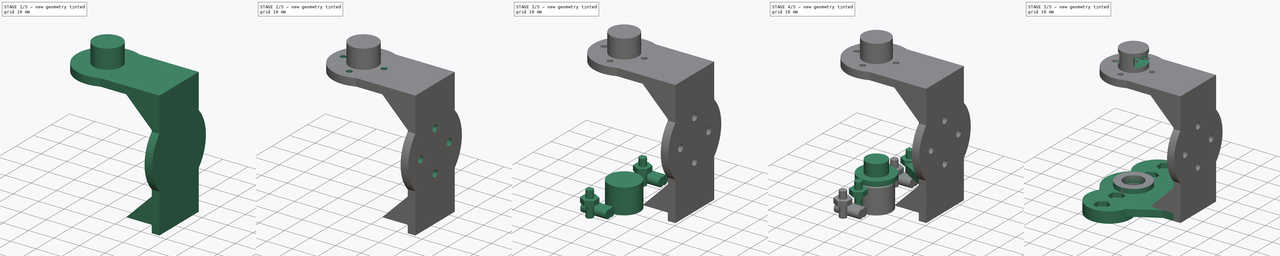
[diagram: build sequence overview — one tinted view per stage of 5, left to right]
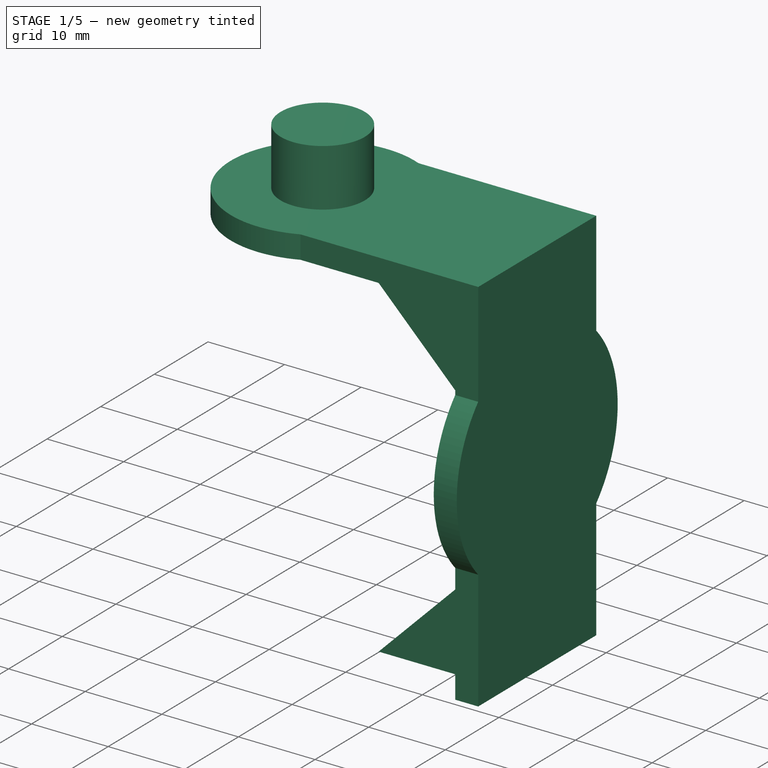
[diagram: stage 1 of 5 — iso view after this stage's code; geometry added in this stage tinted green]
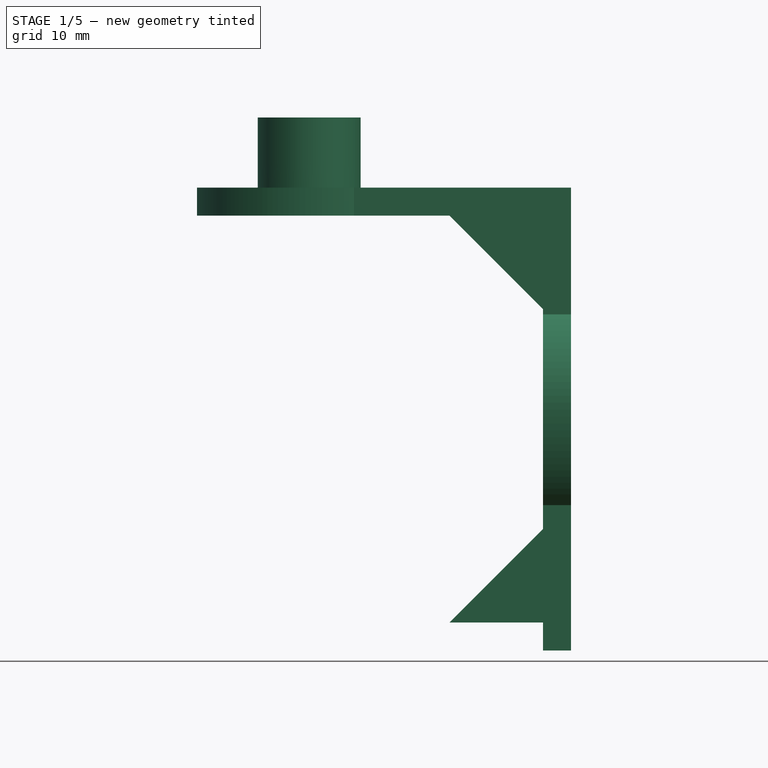
[diagram: stage 1 of 5 — front view after this stage's code; geometry added in this stage tinted green]
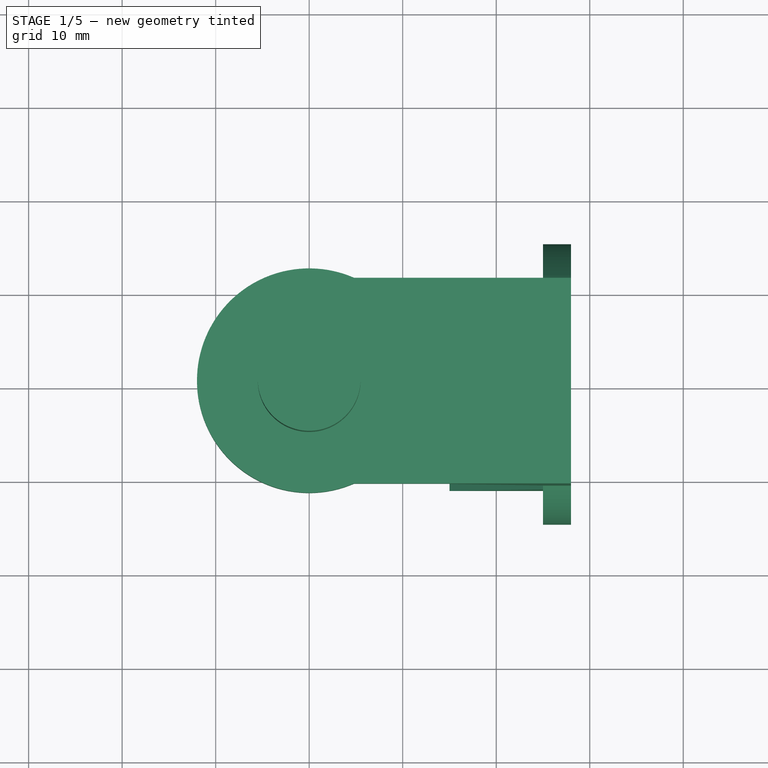
[diagram: stage 1 of 5 — top view after this stage's code; geometry added in this stage tinted green]
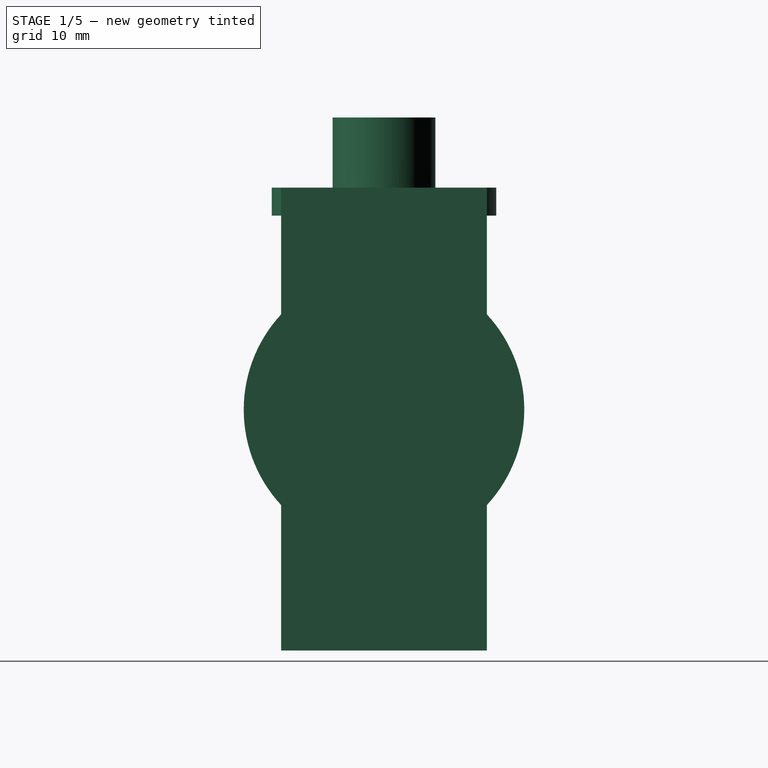
[diagram: stage 1 of 5 — right view after this stage's code; geometry added in this stage tinted green]
FCSTD DOCUMENT  (FreeCAD 0.16R6706 (Git))
Label: wrist_frame
License: All rights reserved
LicenseURL: http://en.wikipedia.org/wiki/All_rights_reserved
objects: Part::Cylinder×28, Part::MultiFuse×25, Part::Mirroring×7, Part::Extrusion×6, Part::Box×5, Part::Fillet×4, Part::Cut×3, Sketcher::SketchObject×2
note: 80 computed .brp shape members not serialized (recipe doc carries the construction recipe); baked Part::Feature solids carry a one-line shape summary decoded from their .brp

FEATURE [Part::Box] Box001  label="Cube001"
  Height = 49.5
  Length = 3
  Placement = pos=(25,-11,-2) rot=(0,0,1;0rad)
  Width = 22
FEATURE [Part::Box] Box002  label="Cube002"
  Height = 3
  Length = 25
  Placement = pos=(0,-11,0) rot=(0,0,1;0rad)
  Width = 22
FEATURE [Part::Cylinder] Cylinder001
  Angle = 360
  Height = 3
  Radius = 12
FEATURE [Part::MultiFuse] Fusion001
  Placement = pos=(0,0,44.5) rot=(0,0,1;0rad)
  Shapes = -> [Box002,Cylinder001]
FEATURE [Part::Cylinder] Cylinder015
  Angle = 360
  Height = 3
  Placement = pos=(25,0,23.75) rot=(0,1,0;1.5708rad)
  Radius = 15
FEATURE [Part::Cylinder] Cylinder016
  Angle = 360
  Height = 6
  Placement = pos=(0,0,44.5) rot=(0,0,1;0rad)
  Radius = 5.5
FEATURE [Part::MultiFuse] Fusion019
  Shapes = -> [Cylinder016,Fusion001]
FEATURE [Part::MultiFuse] Fusion020
  Shapes = -> [Cylinder015,Box001]
FEATURE [Part::MultiFuse] Fusion028
  Shapes = -> [Fusion019,Fusion020]
FEATURE [Sketcher::SketchObject] Sketch
  Placement = pos=(0,-30,0) rot=(1,0,0;1.5708rad)
  sketch-geometry (3):
    g0: LineSegment StartX=15 StartY=1 StartZ=0 EndX=25 EndY=11 EndZ=0
    g1: LineSegment StartX=15 StartY=1 StartZ=0 EndX=25 EndY=1 EndZ=0
    g2: LineSegment StartX=25 StartY=1 StartZ=0 EndX=25 EndY=11 EndZ=0
  constraints (9):
    c: DistanceX(g0) = 25
    c: DistanceY(g0) = 11
    c: DistanceY(g0) = 1
    c: DistanceX(g0) = 15
    c: Coincident(g1,g0)
    c: Horizontal(g1)
    c: DistanceX(g1) = 25
    c: Coincident(g2,g1)
    c: Coincident(g2,g0)
FEATURE [Part::Extrusion] Extrude004
  Base = -> Sketch
  Dir = (0,3,0)
  Placement = pos=(0,19,0) rot=(0,0,1;0rad)
  Solid = true
FEATURE [Part::Mirroring] Part__Mirroring005  label="Extrude004 (Mirror #6)"
  Base = (0,0,0)
  Normal = (0,1,0)
  Source = -> Extrude004
FEATURE [Part::MultiFuse] Fusion030
  Shapes = -> [Extrude004,Part__Mirroring005]
FEATURE [Sketcher::SketchObject] Sketch001
  Placement = pos=(0,-30,0) rot=(1,0,0;1.5708rad)
  sketch-geometry (3):
    g0: LineSegment StartX=15 StartY=1 StartZ=0 EndX=25 EndY=11 EndZ=0
    g1: LineSegment StartX=15 StartY=1 StartZ=0 EndX=25 EndY=1 EndZ=0
    g2: LineSegment StartX=25 StartY=1 StartZ=0 EndX=25 EndY=11 EndZ=0
  constraints (9):
    c: DistanceX(g0) = 25
    c: DistanceY(g0) = 11
    c: DistanceY(g0) = 1
    c: DistanceX(g0) = 15
    c: Coincident(g1,g0)
    c: Horizontal(g1)
    c: DistanceX(g1) = 25
    c: Coincident(g2,g1)
    c: Coincident(g2,g0)
FEATURE [Part::Extrusion] Extrude005
  Base = -> Sketch001
  Dir = (0,3,0)
  Placement = pos=(0,19,0) rot=(0,0,1;0rad)
  Solid = true
FEATURE [Part::Mirroring] Part__Mirroring006  label="Extrude004 (Mirror #6)001"
  Base = (0,0,0)
  Normal = (0,1,0)
  Source = -> Extrude005
FEATURE [Part::MultiFuse] Fusion031
  Placement = pos=(0,0,45.5) rot=(1,0,0;3.14159rad)
  Shapes = -> [Extrude005,Part__Mirroring006]
FEATURE [Part::Cylinder] Cylinder027  label="Cilindro"
  Angle = 360
  Height = 5
  Placement = pos=(0,0,50) rot=(0,0,1;0rad)
  Radius = 5.5
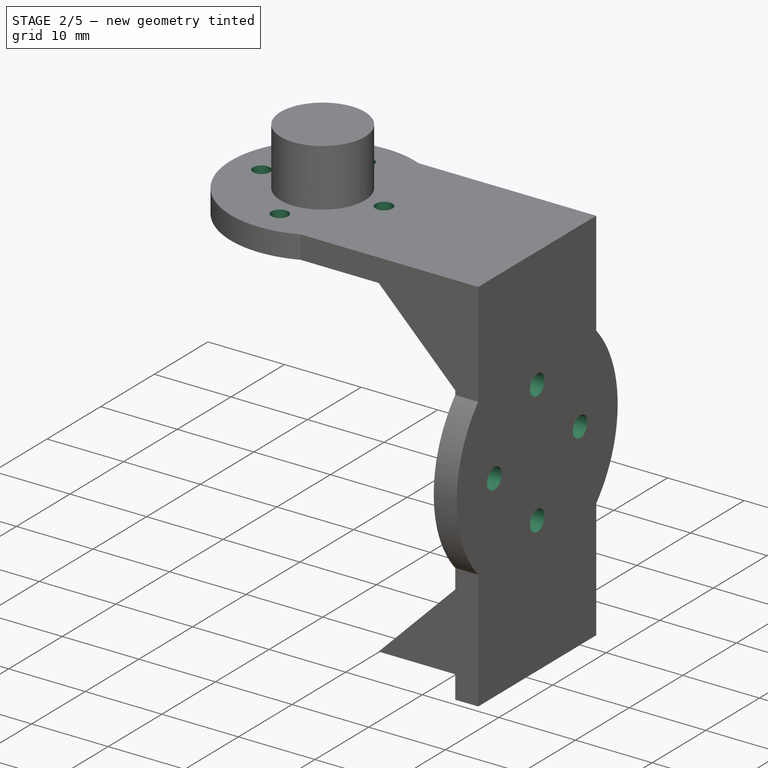
[diagram: stage 2 of 5 — iso view after this stage's code; geometry added in this stage tinted green]
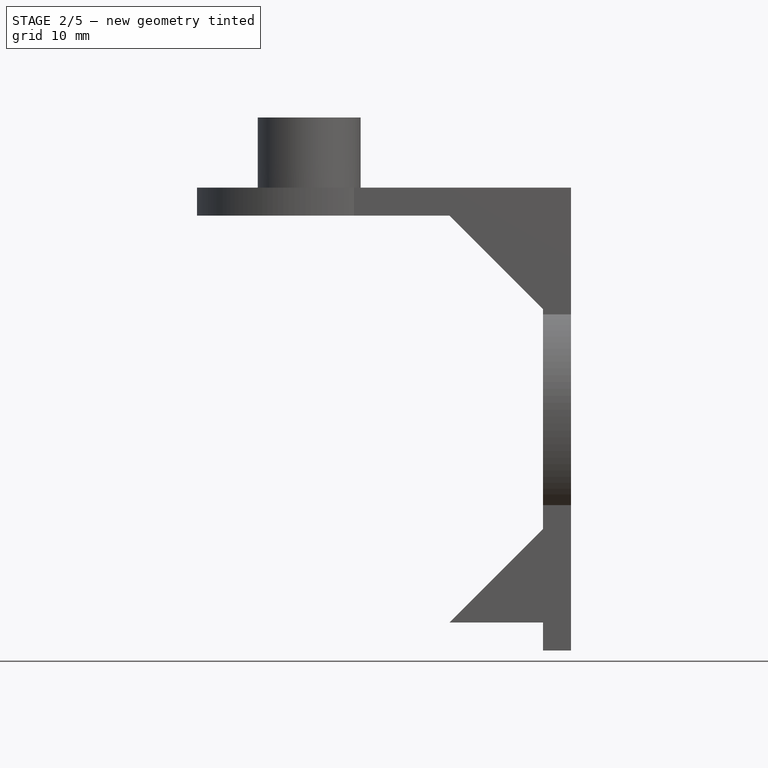
[diagram: stage 2 of 5 — front view after this stage's code; geometry added in this stage tinted green]
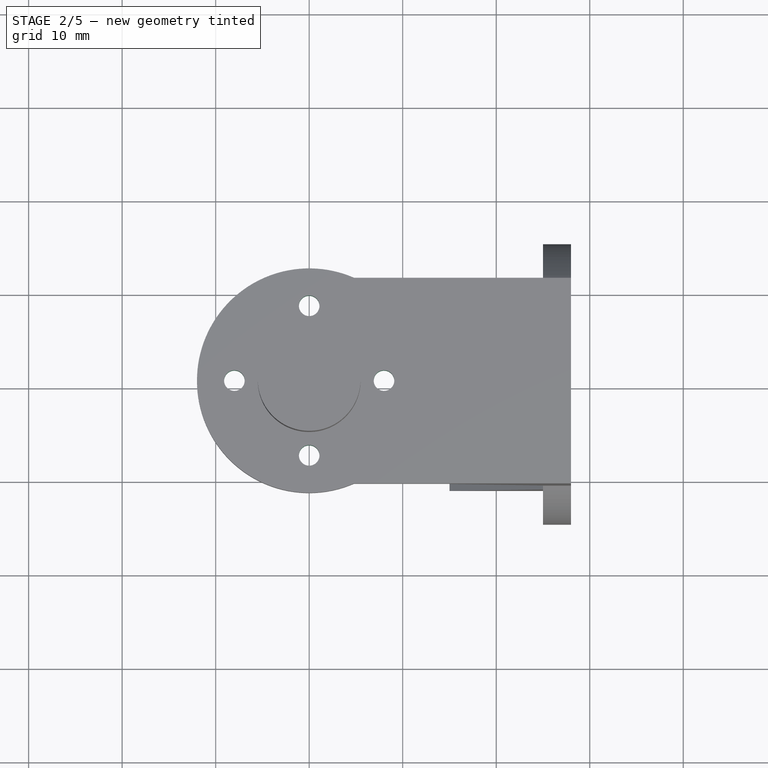
[diagram: stage 2 of 5 — top view after this stage's code; geometry added in this stage tinted green]
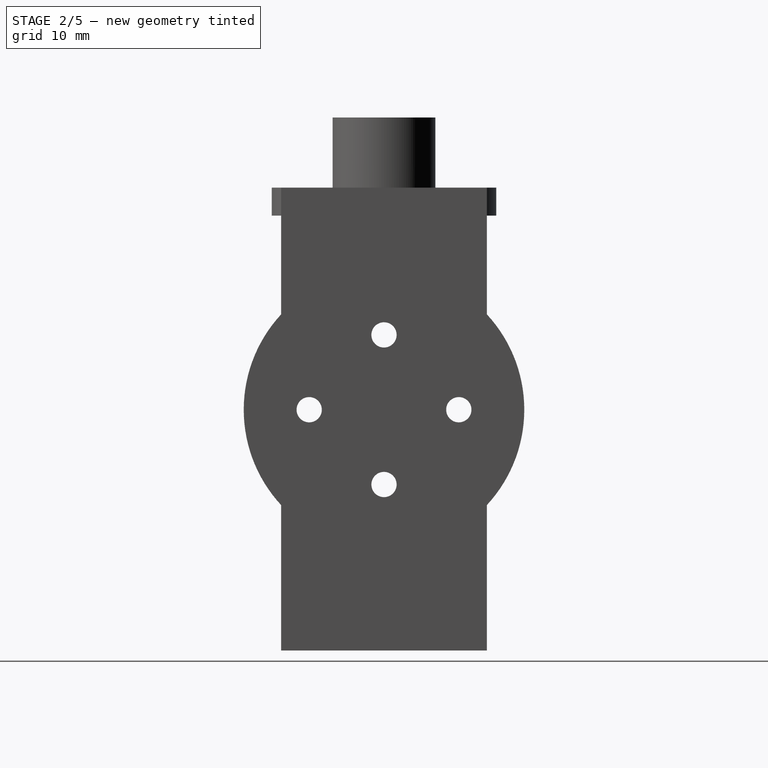
[diagram: stage 2 of 5 — right view after this stage's code; geometry added in this stage tinted green]
FEATURE [Part::Cylinder] Cylinder006
  Angle = 360
  Height = 10
  Placement = pos=(8,0,-3) rot=(0,0,1;0rad)
  Radius = 1.1
FEATURE [Part::Cylinder] Cylinder007
  Angle = 360
  Height = 10
  Placement = pos=(-8,0,-3) rot=(0,0,1;0rad)
  Radius = 1.1
FEATURE [Part::Cylinder] Cylinder008
  Angle = 360
  Height = 10
  Placement = pos=(0,8,-3) rot=(0,0,1;0rad)
  Radius = 1.1
FEATURE [Part::Cylinder] Cylinder009
  Angle = 360
  Height = 10
  Placement = pos=(0,-8,-3) rot=(0,0,1;0rad)
  Radius = 1.1
FEATURE [Part::MultiFuse] Fusion003
  Placement = pos=(0,0,42) rot=(0,0,1;0rad)
  Shapes = -> [Cylinder009,Cylinder008,Cylinder007,Cylinder006]
FEATURE [Part::Cylinder] Cylinder011
  Angle = 360
  Height = 10
  Placement = pos=(8,0,-3) rot=(0,0,1;0rad)
  Radius = 1.35
FEATURE [Part::Cylinder] Cylinder012
  Angle = 360
  Height = 10
  Placement = pos=(-8,0,-3) rot=(0,0,1;0rad)
  Radius = 1.35
FEATURE [Part::Cylinder] Cylinder013
  Angle = 360
  Height = 10
  Placement = pos=(0,8,-3) rot=(0,0,1;0rad)
  Radius = 1.35
FEATURE [Part::Cylinder] Cylinder014
  Angle = 360
  Height = 10
  Placement = pos=(0,-8,-3) rot=(0,0,1;0rad)
  Radius = 1.35
FEATURE [Part::MultiFuse] Fusion004
  Placement = pos=(25,0,23.75) rot=(0,1,0;1.5708rad)
  Shapes = -> [Cylinder014,Cylinder013,Cylinder012,Cylinder011]
FEATURE [Part::Cylinder] Cylinder017
  Angle = 360
  Height = 10
  Placement = pos=(12,0,42.5) rot=(0,0,1;0rad)
  Radius = 1.6
FEATURE [Part::Cylinder] Cylinder018
  Angle = 360
  Height = 3
  Placement = pos=(12,0,44.5) rot=(0,0,1;0rad)
  Radius = 3.25
FEATURE [Part::MultiFuse] Fusion005
  Placement = pos=(-12,0,0) rot=(0,0,1;0rad)
  Shapes = -> [Cylinder018,Cylinder017]
FEATURE [Part::MultiFuse] Fusion027
  Shapes = -> [Fusion003,Fusion005,Fusion004]
FEATURE [Part::Cut] Cut001
  Base = -> Fusion028
  Tool = -> Fusion027
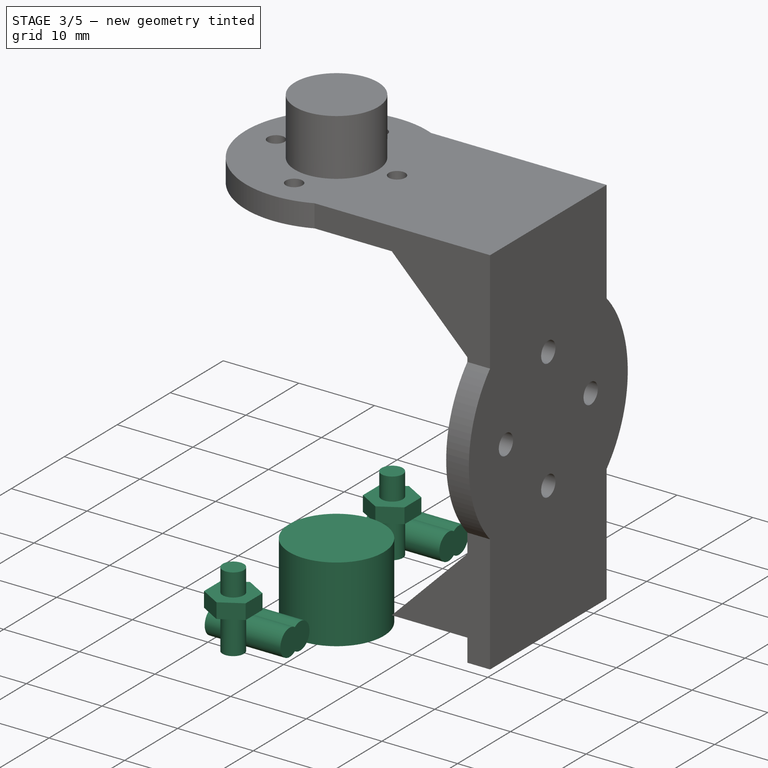
[diagram: stage 3 of 5 — iso view after this stage's code; geometry added in this stage tinted green]
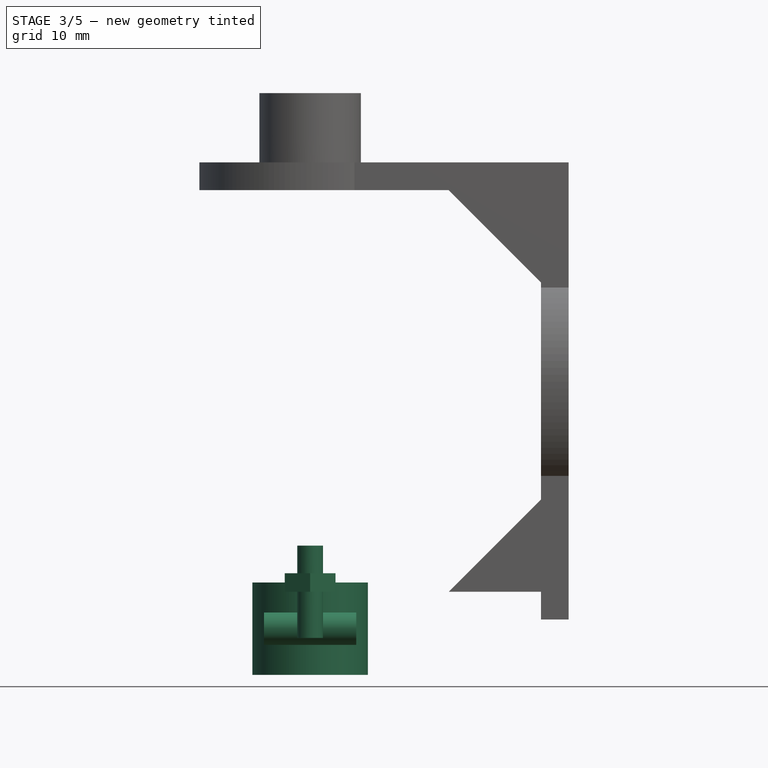
[diagram: stage 3 of 5 — front view after this stage's code; geometry added in this stage tinted green]
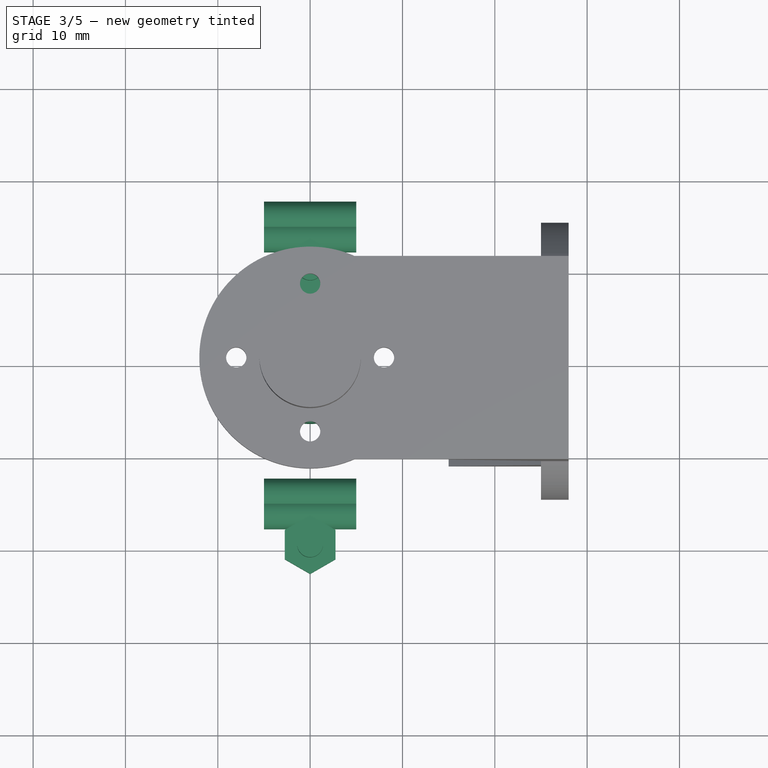
[diagram: stage 3 of 5 — top view after this stage's code; geometry added in this stage tinted green]
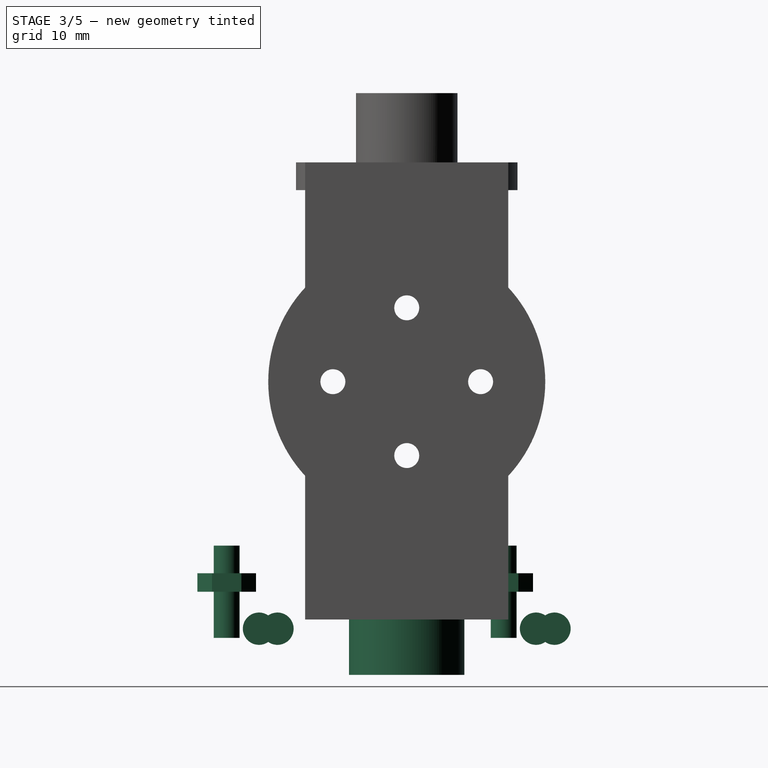
[diagram: stage 3 of 5 — right view after this stage's code; geometry added in this stage tinted green]
FEATURE [Part::Cylinder] Cylinder019
  Angle = 360
  Height = 10
  Placement = pos=(10,-11,-4) rot=(0,0,1;0rad)
  Radius = 1.4
FEATURE [Part::Extrusion] Extrude002
  Dir = (0,0,2)
  Placement = pos=(0,11,0) rot=(0,0,1;0rad)
  Solid = true
FEATURE [Part::Mirroring] Part__Mirroring002  label="Extrude (Mirror #1)002"
  Base = (0,0,0)
  Normal = (1,0,0)
  Source = -> Extrude002
FEATURE [Part::MultiFuse] Fusion011
  Placement = pos=(10,-22,1) rot=(0,0,1;0rad)
  Shapes = -> [Part__Mirroring002,Extrude002]
FEATURE [Part::MultiFuse] Fusion012
  Placement = pos=(-10,-8.5,0) rot=(0,0,1;0rad)
  Shapes = -> [Cylinder019,Fusion011]
FEATURE [Part::Cylinder] Cylinder020
  Angle = 360
  Height = 10
  Placement = pos=(10,11,-4) rot=(0,0,1;0rad)
  Radius = 1.4
FEATURE [Part::Extrusion] Extrude003
  Dir = (0,0,2)
  Placement = pos=(0,11,0) rot=(0,0,1;0rad)
  Solid = true
FEATURE [Part::Mirroring] Part__Mirroring003  label="Extrude (Mirror #1)003"
  Base = (0,0,0)
  Normal = (1,0,0)
  Source = -> Extrude003
FEATURE [Part::MultiFuse] Fusion013
  Placement = pos=(10,0,1) rot=(0,0,1;0rad)
  Shapes = -> [Part__Mirroring003,Extrude003]
FEATURE [Part::MultiFuse] Fusion014
  Placement = pos=(-10,-0.5,0) rot=(0,0,1;0rad)
  Shapes = -> [Fusion013,Cylinder020]
FEATURE [Part::Cylinder] Cylinder021
  Angle = 360
  Height = 10
  Placement = pos=(-5,16,-3) rot=(0,1,0;1.5708rad)
  Radius = 1.75
FEATURE [Part::Cylinder] Cylinder022
  Angle = 360
  Height = 10
  Placement = pos=(-5,-14,-3) rot=(0,1,0;1.5708rad)
  Radius = 1.75
FEATURE [Part::Cylinder] Cylinder024
  Angle = 360
  Height = 10
  Placement = pos=(0,0,-8) rot=(0,0,1;0rad)
  Radius = 6.25
FEATURE [Part::Cylinder] Cylinder025
  Angle = 360
  Height = 10
  Placement = pos=(-5,-16,-3) rot=(0,1,0;1.5708rad)
  Radius = 1.75
FEATURE [Part::Cylinder] Cylinder026
  Angle = 360
  Height = 10
  Placement = pos=(-5,14,-3) rot=(0,1,0;1.5708rad)
  Radius = 1.75
FEATURE [Part::MultiFuse] Fusion025
  Shapes = -> [Cylinder026,Cylinder025,Cylinder021,Cylinder022]
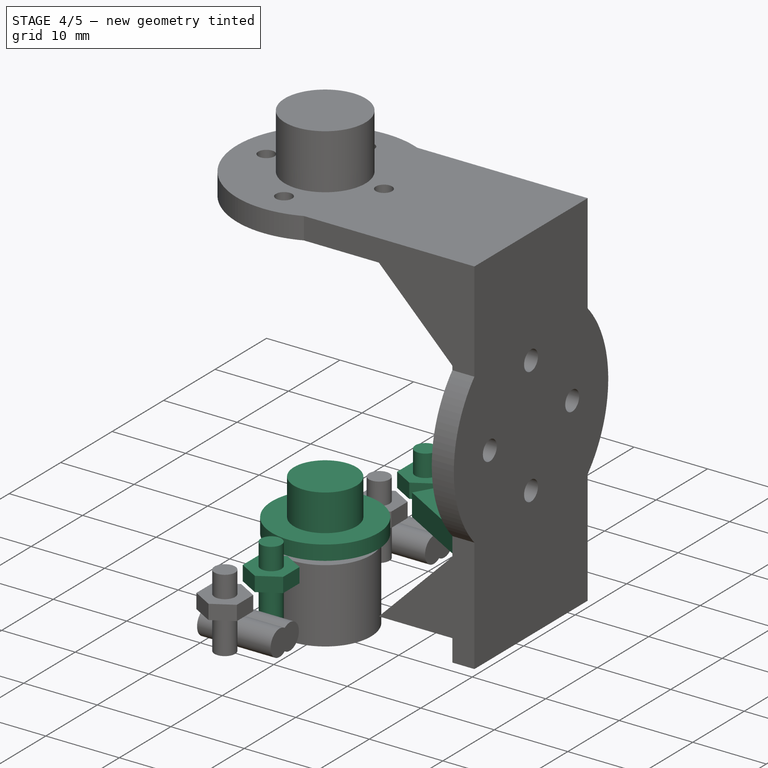
[diagram: stage 4 of 5 — iso view after this stage's code; geometry added in this stage tinted green]
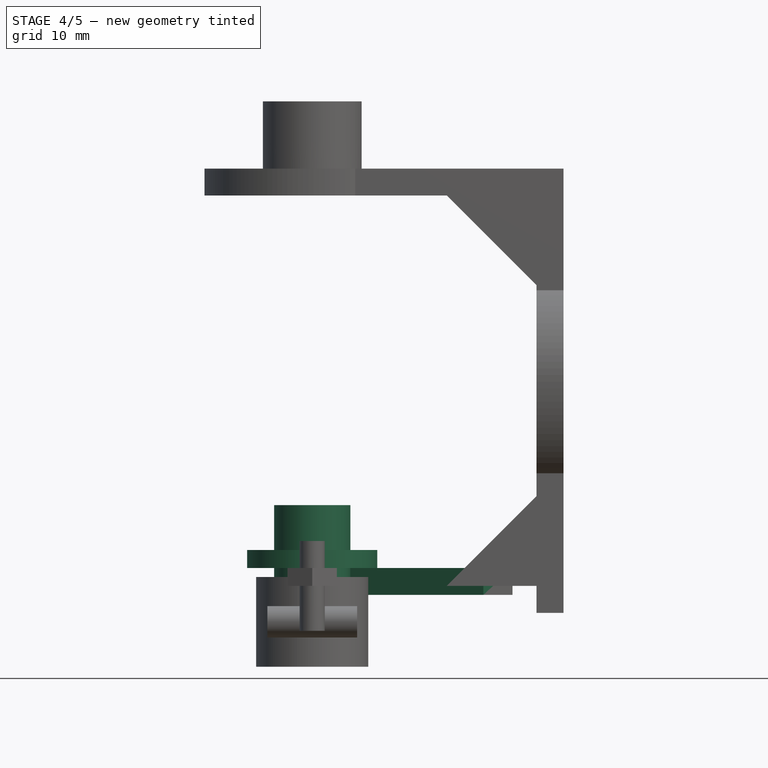
[diagram: stage 4 of 5 — front view after this stage's code; geometry added in this stage tinted green]
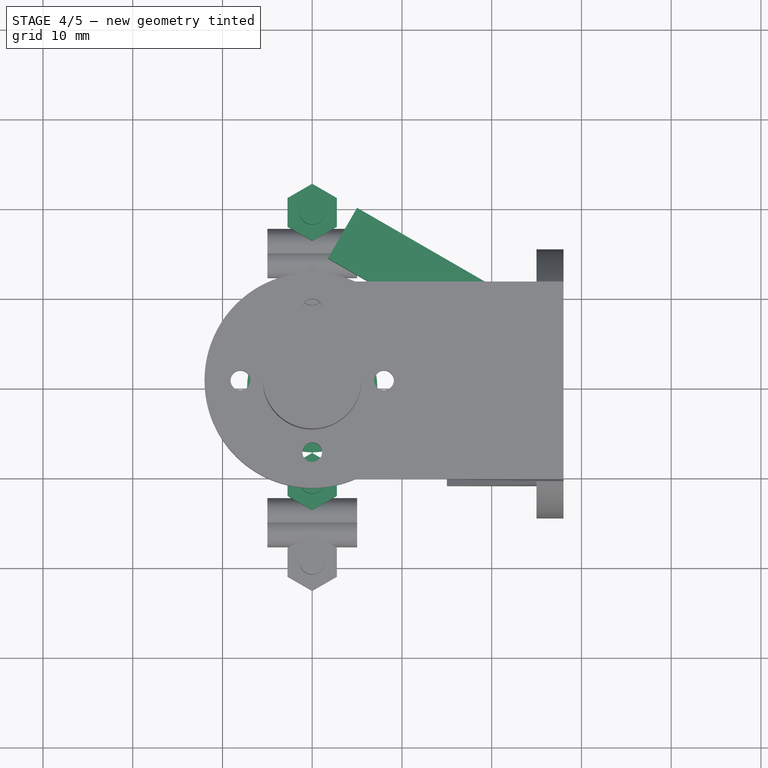
[diagram: stage 4 of 5 — top view after this stage's code; geometry added in this stage tinted green]
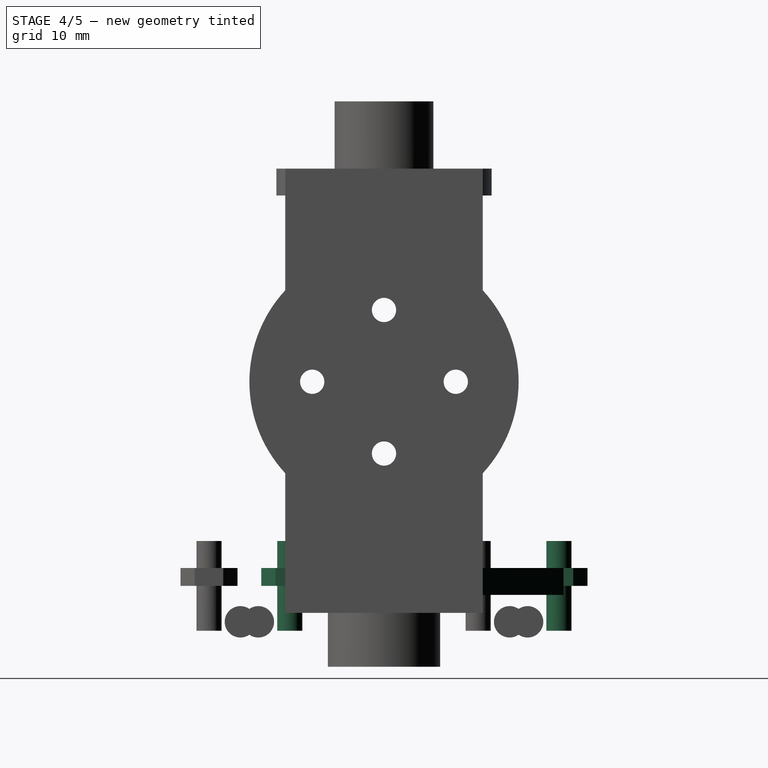
[diagram: stage 4 of 5 — right view after this stage's code; geometry added in this stage tinted green]
FEATURE [Part::Cylinder] Cylinder004
  Angle = 360
  Height = 10
  Placement = pos=(10,-11,-4) rot=(0,0,1;0rad)
  Radius = 1.4
FEATURE [Part::Cylinder] Cylinder005
  Angle = 360
  Height = 10
  Placement = pos=(10,11,-4) rot=(0,0,1;0rad)
  Radius = 1.4
FEATURE [Part::Cylinder] Cylinder010
  Angle = 360
  Height = 10
  Radius = 4.25
FEATURE [Part::Extrusion] Extrude
  Dir = (0,0,2)
  Placement = pos=(0,11,0) rot=(0,0,1;0rad)
  Solid = true
FEATURE [Part::Mirroring] Part__Mirroring  label="Extrude (Mirror #1)"
  Base = (0,0,0)
  Normal = (1,0,0)
  Source = -> Extrude
FEATURE [Part::MultiFuse] Fusion007
  Placement = pos=(10,0,1) rot=(0,0,1;0rad)
  Shapes = -> [Part__Mirroring,Extrude]
FEATURE [Part::Extrusion] Extrude001
  Dir = (0,0,2)
  Placement = pos=(0,11,0) rot=(0,0,1;0rad)
  Solid = true
FEATURE [Part::Mirroring] Part__Mirroring001  label="Extrude (Mirror #1)001"
  Base = (0,0,0)
  Normal = (1,0,0)
  Source = -> Extrude001
FEATURE [Part::MultiFuse] Fusion008
  Placement = pos=(10,-22,1) rot=(0,0,1;0rad)
  Shapes = -> [Part__Mirroring001,Extrude001]
FEATURE [Part::MultiFuse] Fusion009
  Placement = pos=(-10,0.5,0) rot=(0,0,1;0rad)
  Shapes = -> [Cylinder004,Fusion008]
FEATURE [Part::MultiFuse] Fusion010
  Placement = pos=(-10,8.5,0) rot=(0,0,1;0rad)
  Shapes = -> [Fusion007,Cylinder005]
FEATURE [Part::Box] Box003  label="Cube003"
  Height = 3
  Length = 20
  Placement = pos=(5,-20,0) rot=(0,0,1;0.523599rad)
  Width = 6.5
FEATURE [Part::Mirroring] Part__Mirroring004  label="Cube003 (Mirror #5)"
  Base = (0,0,0)
  Normal = (0,1,0)
  Source = -> Box003
FEATURE [Part::Cylinder] Cylinder023
  Angle = 360
  Height = 2
  Placement = pos=(0,0,3) rot=(0,0,1;0rad)
  Radius = 7.25
FEATURE [Part::MultiFuse] Fusion026
  Shapes = -> [Cylinder024,Cylinder010,Fusion009,Fusion025,Fusion012,Fusion014,Fusion010]
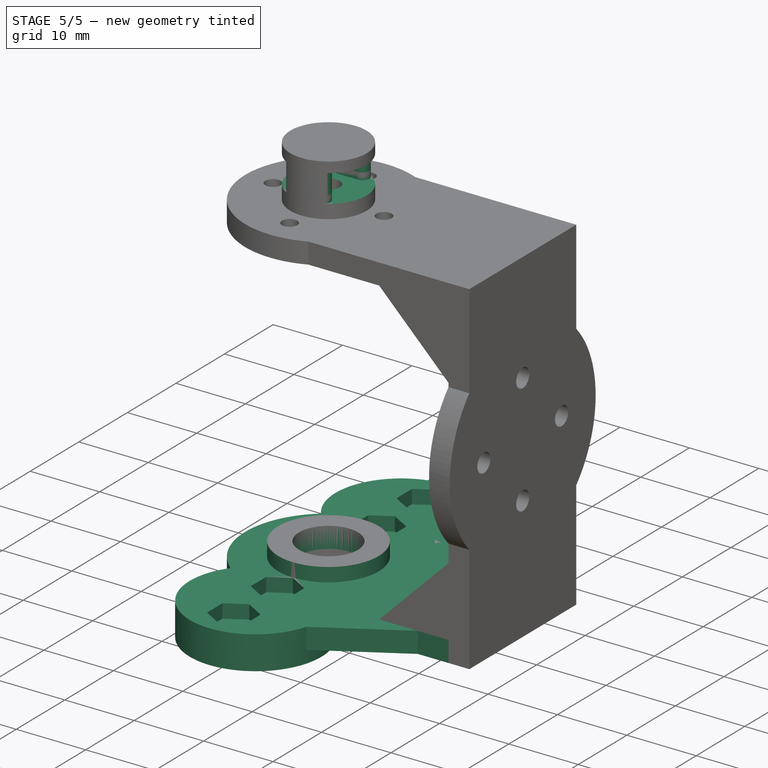
[diagram: stage 5 of 5 — iso view after this stage's code; geometry added in this stage tinted green]
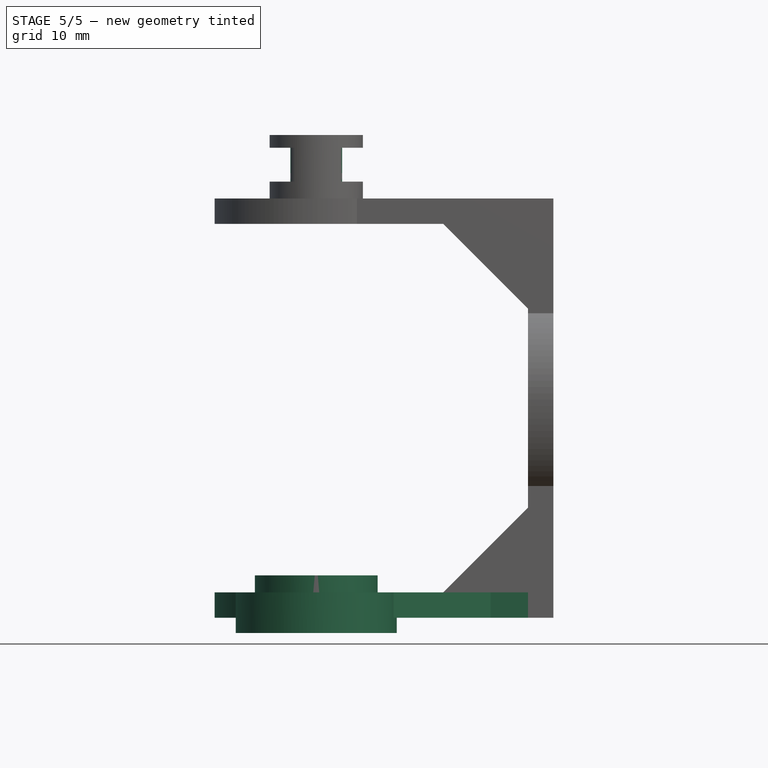
[diagram: stage 5 of 5 — front view after this stage's code; geometry added in this stage tinted green]
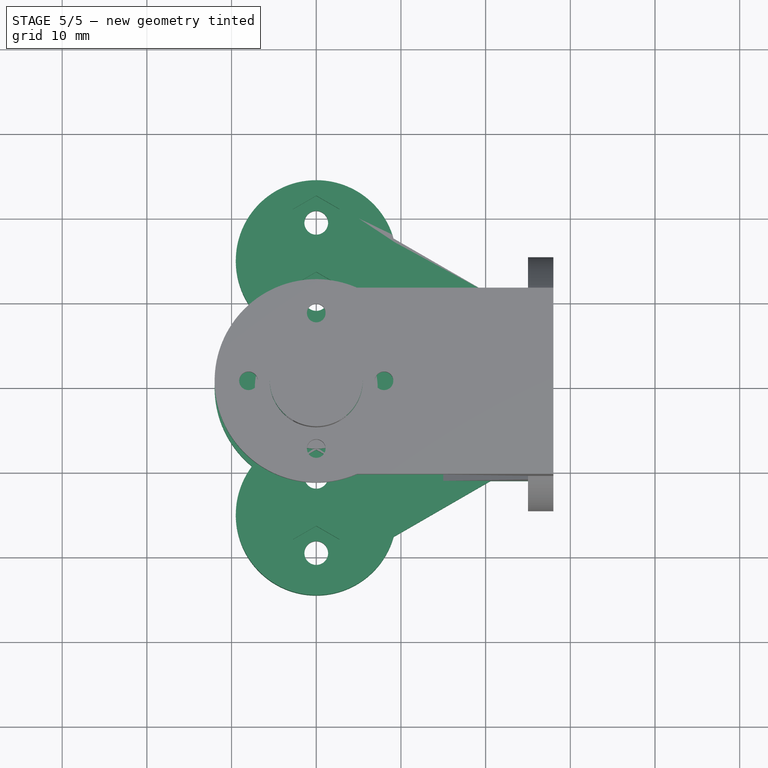
[diagram: stage 5 of 5 — top view after this stage's code; geometry added in this stage tinted green]
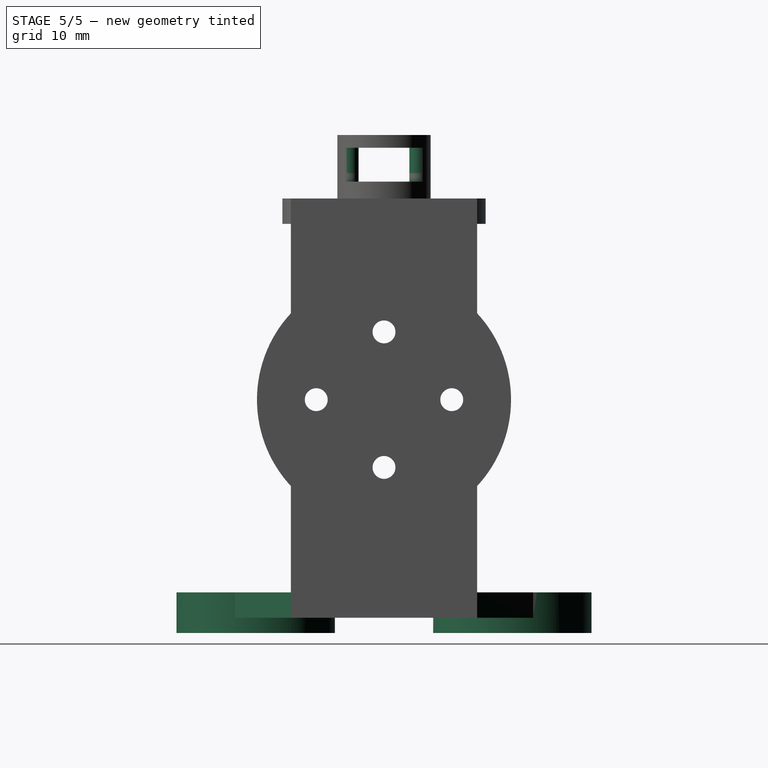
[diagram: stage 5 of 5 — right view after this stage's code; geometry added in this stage tinted green]
FEATURE [Part::Box] Box  label="Cube"
  Height = 3
  Length = 25
  Placement = pos=(0,-11,0) rot=(0,0,1;0rad)
  Width = 22
FEATURE [Part::Cylinder] Cylinder
  Angle = 360
  Height = 3
  Radius = 12
FEATURE [Part::MultiFuse] Fusion
  Shapes = -> [Box,Cylinder]
FEATURE [Part::Cylinder] Cylinder002
  Angle = 360
  Height = 4.8
  Placement = pos=(0,15,-1.8) rot=(0,0,1;0rad)
  Radius = 9.5
FEATURE [Part::Cylinder] Cylinder003
  Angle = 360
  Height = 4.8
  Placement = pos=(0,-15,-1.8) rot=(0,0,1;0rad)
  Radius = 9.5
FEATURE [Part::MultiFuse] Fusion024
  Shapes = -> [Cylinder002,Cylinder003,Box003,Part__Mirroring004,Fusion,Cylinder023]
FEATURE [Part::Cut] Cut
  Base = -> Fusion024
  Placement = pos=(0,0,-2) rot=(0,0,1;0rad)
  Tool = -> Fusion026
FEATURE [Part::MultiFuse] Fusion029
  Shapes = -> [Cut,Cut001]
FEATURE [Part::MultiFuse] Fusion032
  Shapes = -> [Fusion029,Fusion031,Fusion030]
FEATURE [Part::Box] Box004  label="Cubo"
  Height = 4
  Length = 13
  Placement = pos=(-7,-3,49.5) rot=(0,0,1;0rad)
  Width = 6
FEATURE [Part::MultiFuse] Fusion033
  Shapes = -> [Cylinder027,Fusion032]
FEATURE [Part::Cut] Cut002
  Base = -> Fusion033
  Tool = -> Box004
FEATURE [Part::Fillet] Fillet
  Base = -> Cut002
  Edges = 4 edges r=1: [Edge7,Edge23,Edge24,Edge25]
FEATURE [Part::Fillet] Fillet001
  Base = -> Fillet
  Edges = 4 edges r=1: [Edge8,Edge28,Edge29,Edge30]
FEATURE [Part::Fillet] Fillet002
  Base = -> Fillet001
  Edges = 4 edges r=1: [Edge13,Edge30,Edge31,Edge34]
FEATURE [Part::Fillet] Fillet003
  Base = -> Fillet002
  Edges = 4 edges r=1: [Edge14,Edge29,Edge31,Edge34]
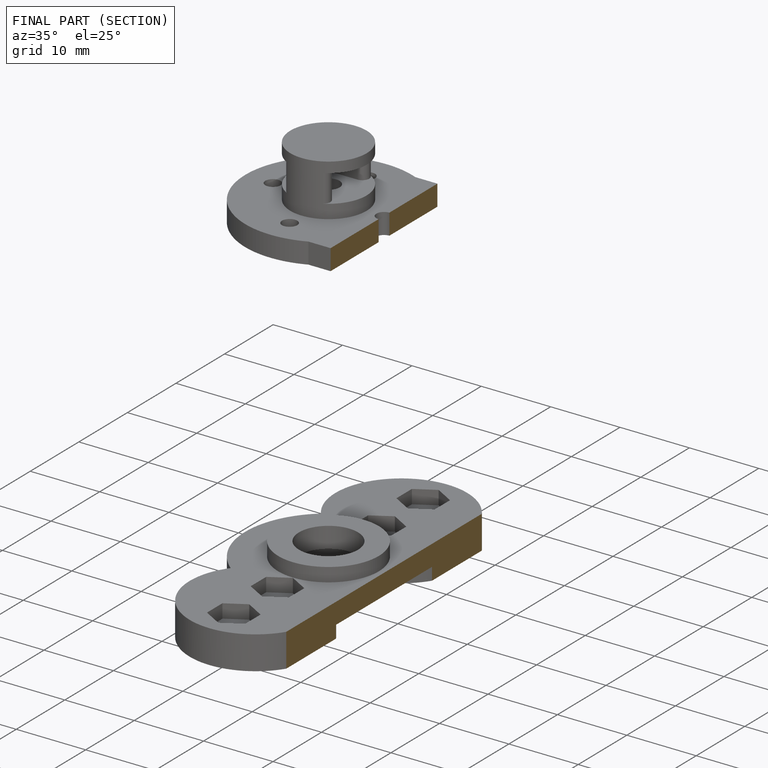
[diagram: finished part — half-section view (interior)]
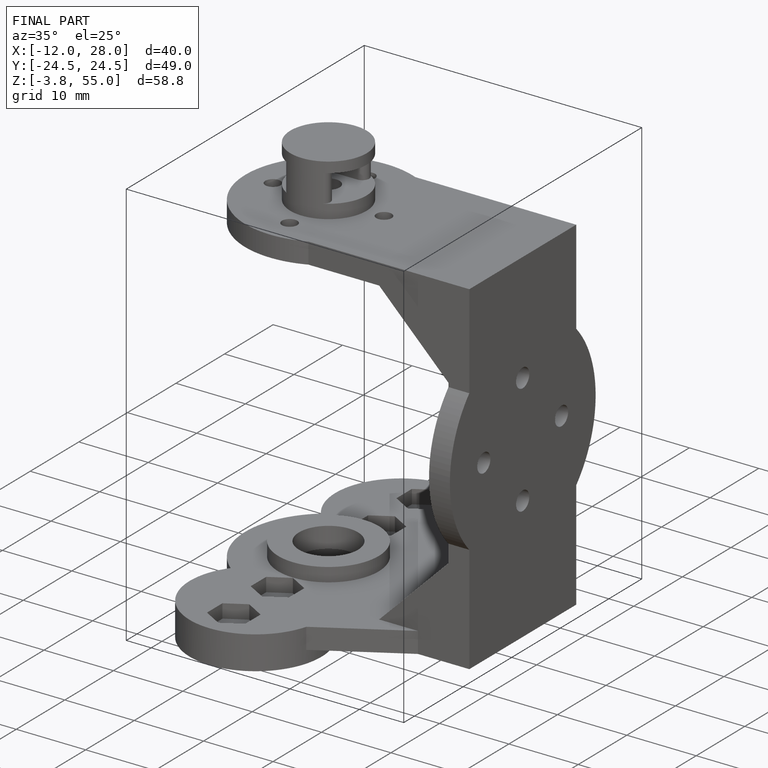
[diagram: finished part — iso view with bounding-box wireframe]
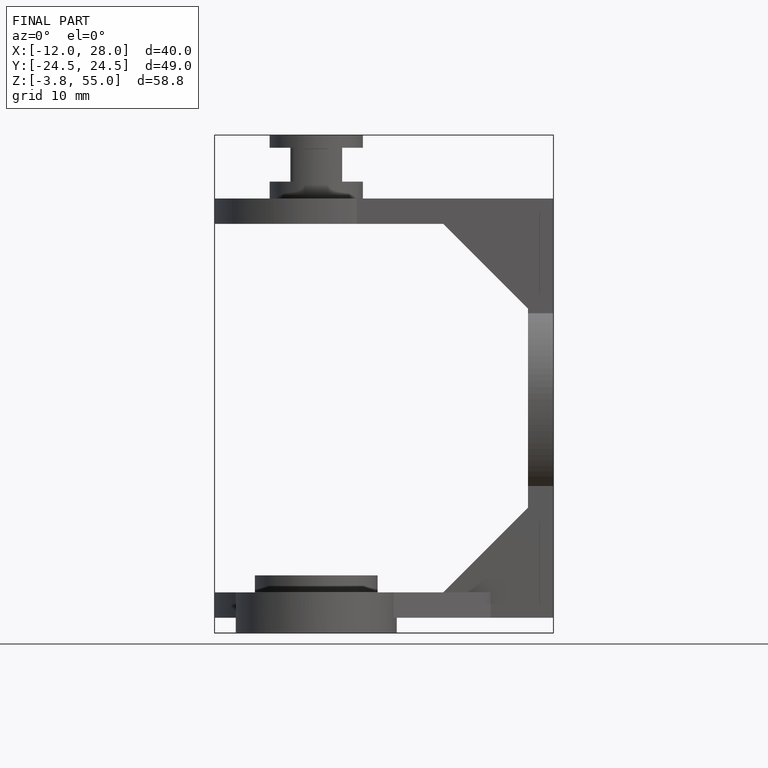
[diagram: finished part — front view with bounding-box wireframe]
